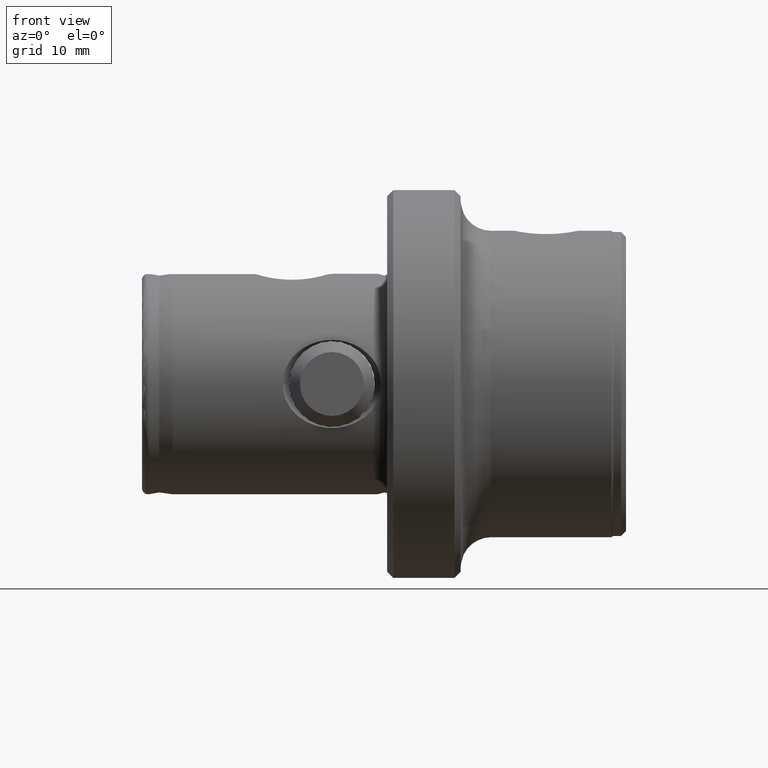
[diagram: clean part render]
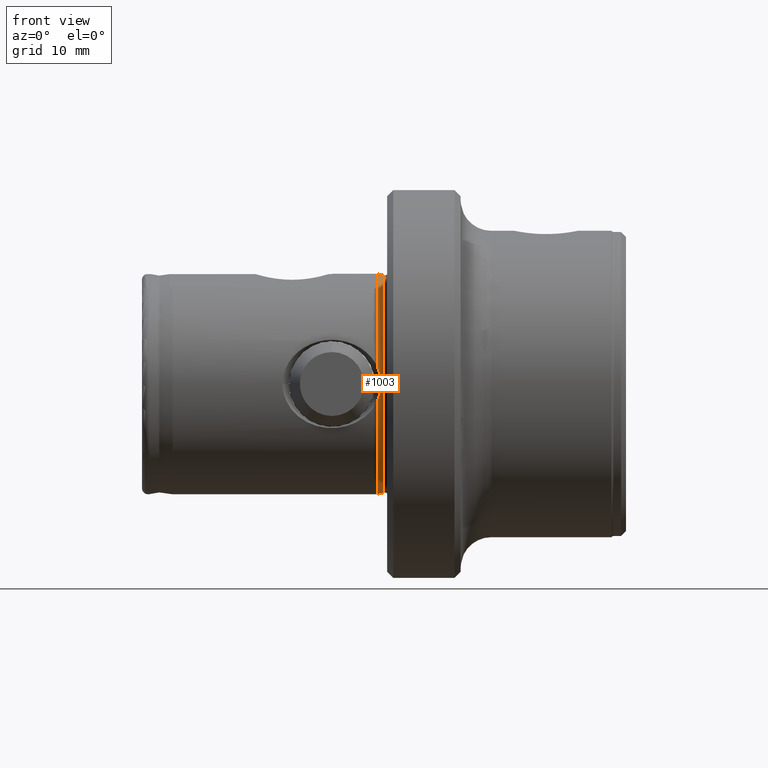
[diagram: same view with one face highlighted and labeled with its STEP entity id]
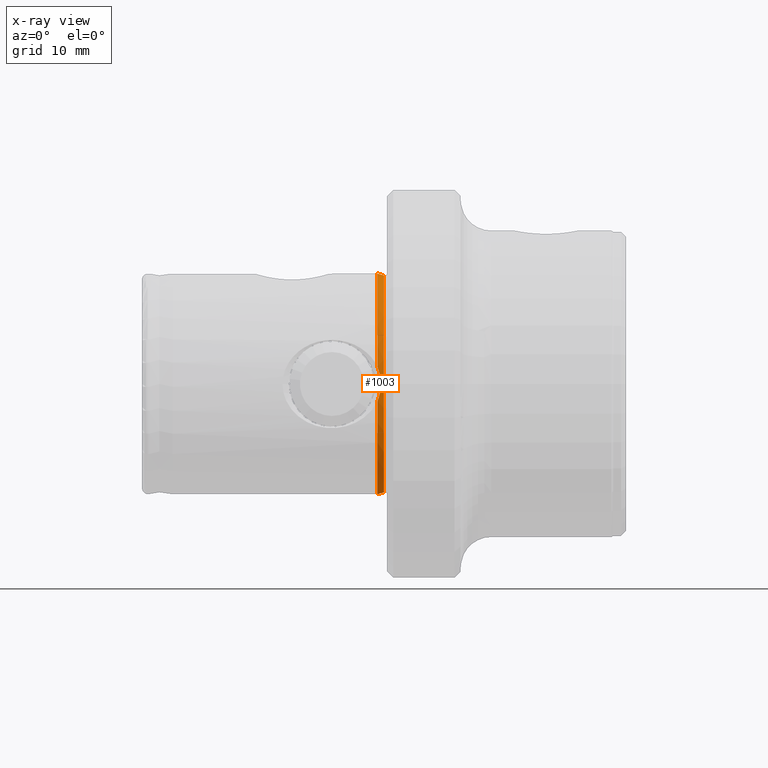
[diagram: x-ray of the same camera — body ghosted, the highlighted face saturated]
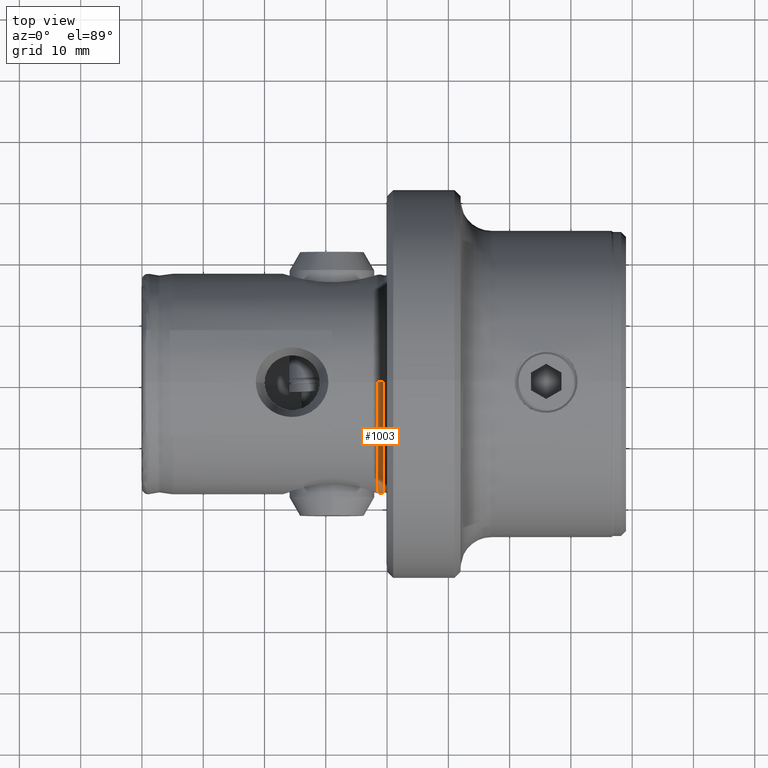
[diagram: same view with one face highlighted and labeled with its STEP entity id]
A machine part, front view. The second image highlights one B-rep face of the part: STEP entity #1003.
The next image is the same camera in x-ray: the body ghosted, the highlighted face saturated — about 0% of this face is hidden behind the body in this view.
A second angle (top view) of the same face is appended — the face is thin or edge-on in the first view.
In plain terms, the highlighted conical surface has half-angle 15 deg.
Its self-contained STEP definition (entity closure, byte-faithful):
#42 = ORIENTED_EDGE ( 'NONE', *, *, #1199, .F. ) ;
#96 = VERTEX_POINT ( 'NONE', #5167 ) ;
#127 = EDGE_CURVE ( 'NONE', #4643, #4776, #4314, .T. ) ;
#249 = DIRECTION ( 'NONE',  ( -1.000000000000000000, -0.0000000000000000000, -0.0000000000000000000 ) ) ;
#321 = DIRECTION ( 'NONE',  ( 0.0000000000000000000, 0.0000000000000000000, 1.000000000000000000 ) ) ;
#615 = CARTESIAN_POINT ( 'NONE',  ( 38.98054030884236500, -17.84834563378427000, -9.750047156538838500E-016 ) ) ;
#651 = ORIENTED_EDGE ( 'NONE', *, *, #4409, .T. ) ;
#679 = VECTOR ( 'NONE', #1565, 1000.000000000000000 ) ;
#722 = CIRCLE ( 'NONE', #785, 17.99999999999999600 ) ;
#782 = CARTESIAN_POINT ( 'NONE',  ( 38.74152784224498400, -17.81542761116660900, 1.920193725728653900 ) ) ;
#785 = AXIS2_PLACEMENT_3D ( 'NONE', #933, #3732, #1327 ) ;
#927 = CARTESIAN_POINT ( 'NONE',  ( 38.98054030884236500, -17.84834563378427000, -9.750047156538838500E-016 ) ) ;
#933 = CARTESIAN_POINT ( 'NONE',  ( 38.41455850893560600, 0.0000000000000000000, 0.0000000000000000000 ) ) ;
#1003 = ADVANCED_FACE ( 'NONE', ( #2784 ), #3737, .T. ) ;
#1021 = CARTESIAN_POINT ( 'NONE',  ( 38.93230986430398100, -17.84132233435070000, -0.9673769486184995400 ) ) ;
#1150 = AXIS2_PLACEMENT_3D ( 'NONE', #4330, #2728, #321 ) ;
#1181 = CARTESIAN_POINT ( 'NONE',  ( 38.91980784852926700, -17.83976855770019300, 0.9723715137811799200 ) ) ;
#1199 = EDGE_CURVE ( 'NONE', #2981, #96, #722, .T. ) ;
#1260 = B_SPLINE_CURVE_WITH_KNOTS ( 'NONE', 3,
 ( #2360, #2764, #782, #3582, #1181, #3988, #1583, #4389 ),
 .UNSPECIFIED., .F., .F.,
 ( 4, 2, 2, 4 ),
 ( 5.169900236622742100E-007, 0.001447183814771301300, 0.002170517227145120300, 0.002893850639518939900 ),
 .UNSPECIFIED. ) ;
#1261 = CIRCLE ( 'NONE', #3375, 17.99999999999999600 ) ;
#1327 = DIRECTION ( 'NONE',  ( 0.0000000000000000000, 0.0000000000000000000, 1.000000000000000000 ) ) ;
#1424 = CARTESIAN_POINT ( 'NONE',  ( 38.60072572444038700, -17.79680432727829900, -2.383826887291642400 ) ) ;
#1460 = CARTESIAN_POINT ( 'NONE',  ( 39.47059047744874500, 2.187037757172241800E-015, -17.71703708685545900 ) ) ;
#1565 = DIRECTION ( 'NONE',  ( -0.9659258262890703100, 3.169619151431673700E-017, -0.2588190451025133000 ) ) ;
#1575 = CARTESIAN_POINT ( 'NONE',  ( 39.47059047744874500, 2.169711275879248300E-015, -17.71703708685545900 ) ) ;
#1583 = CARTESIAN_POINT ( 'NONE',  ( 38.98054030884237200, -17.84834563378427000, 0.2441505922411133500 ) ) ;
#1593 = CARTESIAN_POINT ( 'NONE',  ( 39.47059047744874500, 0.0000000000000000000, 0.0000000000000000000 ) ) ;
#1704 = CARTESIAN_POINT ( 'NONE',  ( 38.41455850893560600, -17.77522644697580400, 2.835722969320484000 ) ) ;
#1746 = LINE ( 'NONE', #1575, #679 ) ;
#1789 = VERTEX_POINT ( 'NONE', #927 ) ;
#1899 = ORIENTED_EDGE ( 'NONE', *, *, #3183, .T. ) ;
#1927 = DIRECTION ( 'NONE',  ( -0.9659258262890703100, 0.0000000000000000000, 0.2588190451025133000 ) ) ;
#1939 = ORIENTED_EDGE ( 'NONE', *, *, #3427, .T. ) ;
#1984 = DIRECTION ( 'NONE',  ( 0.0000000000000000000, 0.0000000000000000000, 1.000000000000000000 ) ) ;
#2283 = ORIENTED_EDGE ( 'NONE', *, *, #3806, .F. ) ;
#2316 = CIRCLE ( 'NONE', #5064, 17.71703708685545900 ) ;
#2360 = CARTESIAN_POINT ( 'NONE',  ( 38.41455850893560600, -17.77522644697580400, 2.835722969320484000 ) ) ;
#2380 = EDGE_LOOP ( 'NONE', ( #2396, #1899, #4141, #2283, #651, #1939, #42 ) ) ;
#2396 = ORIENTED_EDGE ( 'NONE', *, *, #4898, .F. ) ;
#2652 = CARTESIAN_POINT ( 'NONE',  ( 38.41455850893560600, 0.0000000000000000000, 0.0000000000000000000 ) ) ;
#2728 = DIRECTION ( 'NONE',  ( -1.000000000000000000, -0.0000000000000000000, -0.0000000000000000000 ) ) ;
#2764 = CARTESIAN_POINT ( 'NONE',  ( 38.60109184232982200, -17.79684676250497300, 2.382938184954136700 ) ) ;
#2784 = FACE_OUTER_BOUND ( 'NONE', #2380, .T. ) ;
#2981 = VERTEX_POINT ( 'NONE', #3736 ) ;
#3009 = CARTESIAN_POINT ( 'NONE',  ( 38.98054030884236500, -17.84834563378427300, -0.4872007951861422900 ) ) ;
#3034 = VERTEX_POINT ( 'NONE', #1460 ) ;
#3059 = DIRECTION ( 'NONE',  ( 0.0000000000000000000, 0.0000000000000000000, 1.000000000000000000 ) ) ;
#3183 = EDGE_CURVE ( 'NONE', #3034, #4643, #2316, .T. ) ;
#3240 = VECTOR ( 'NONE', #1927, 1000.000000000000000 ) ;
#3375 = AXIS2_PLACEMENT_3D ( 'NONE', #2652, #249, #3059 ) ;
#3427 = EDGE_CURVE ( 'NONE', #1789, #96, #4451, .T. ) ;
#3582 = CARTESIAN_POINT ( 'NONE',  ( 38.88383015466647000, -17.83473775920937500, 1.211196995143395600 ) ) ;
#3705 = CARTESIAN_POINT ( 'NONE',  ( 39.47059047744874500, 0.0000000000000000000, 17.71703708685545900 ) ) ;
#3732 = DIRECTION ( 'NONE',  ( -1.000000000000000000, -0.0000000000000000000, -0.0000000000000000000 ) ) ;
#3736 = CARTESIAN_POINT ( 'NONE',  ( 38.41455850893560600, 2.204364238465235000E-015, -17.99999999999999600 ) ) ;
#3737 = CONICAL_SURFACE ( 'NONE', #1150, 17.71703708685545900, 0.2617993877991416900 ) ;
#3750 = VERTEX_POINT ( 'NONE', #1704 ) ;
#3806 = EDGE_CURVE ( 'NONE', #3750, #4776, #1261, .T. ) ;
#3832 = CARTESIAN_POINT ( 'NONE',  ( 38.74316837148121800, -17.81564433953967700, -1.914266272745738000 ) ) ;
#3988 = CARTESIAN_POINT ( 'NONE',  ( 38.96817896242049500, -17.84657511322410500, 0.4895779678940486200 ) ) ;
#4141 = ORIENTED_EDGE ( 'NONE', *, *, #127, .T. ) ;
#4229 = CARTESIAN_POINT ( 'NONE',  ( 38.41455850893858300, -17.77522644697679200, -2.835722969314299600 ) ) ;
#4314 = LINE ( 'NONE', #5178, #3240 ) ;
#4330 = CARTESIAN_POINT ( 'NONE',  ( 39.47059047744874500, 0.0000000000000000000, 0.0000000000000000000 ) ) ;
#4389 = CARTESIAN_POINT ( 'NONE',  ( 38.98054030884236500, -17.84834563378427000, -9.750047156538838500E-016 ) ) ;
#4395 = DIRECTION ( 'NONE',  ( -1.000000000000000000, -0.0000000000000000000, -0.0000000000000000000 ) ) ;
#4409 = EDGE_CURVE ( 'NONE', #3750, #1789, #1260, .T. ) ;
#4451 = B_SPLINE_CURVE_WITH_KNOTS ( 'NONE', 3,
 ( #615, #3009, #1021, #3832, #1424, #4229 ),
 .UNSPECIFIED., .F., .F.,
 ( 4, 2, 4 ),
 ( 0.002893850639518939900, 0.004337257392942662500, 0.005780664146366385600 ),
 .UNSPECIFIED. ) ;
#4643 = VERTEX_POINT ( 'NONE', #3705 ) ;
#4776 = VERTEX_POINT ( 'NONE', #5078 ) ;
#4898 = EDGE_CURVE ( 'NONE', #3034, #2981, #1746, .T. ) ;
#5064 = AXIS2_PLACEMENT_3D ( 'NONE', #1593, #4395, #1984 ) ;
#5078 = CARTESIAN_POINT ( 'NONE',  ( 38.41455850893560600, 0.0000000000000000000, 17.99999999999999600 ) ) ;
#5167 = CARTESIAN_POINT ( 'NONE',  ( 38.41455850893858300, -17.77522644697679200, -2.835722969314299600 ) ) ;
#5178 = CARTESIAN_POINT ( 'NONE',  ( 39.47059047744874500, 0.0000000000000000000, 17.71703708685545900 ) ) ;